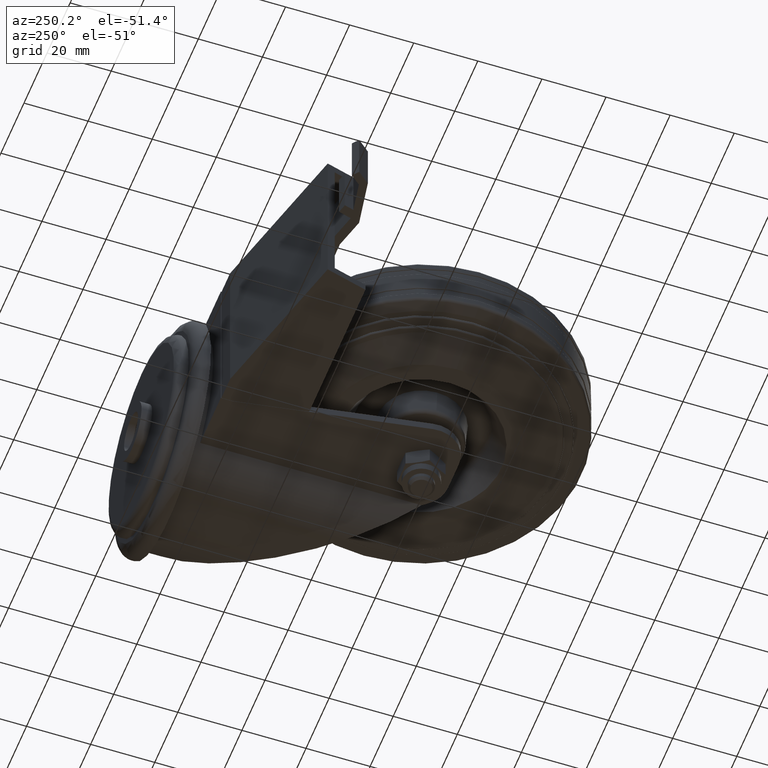
[diagram: clean part render]
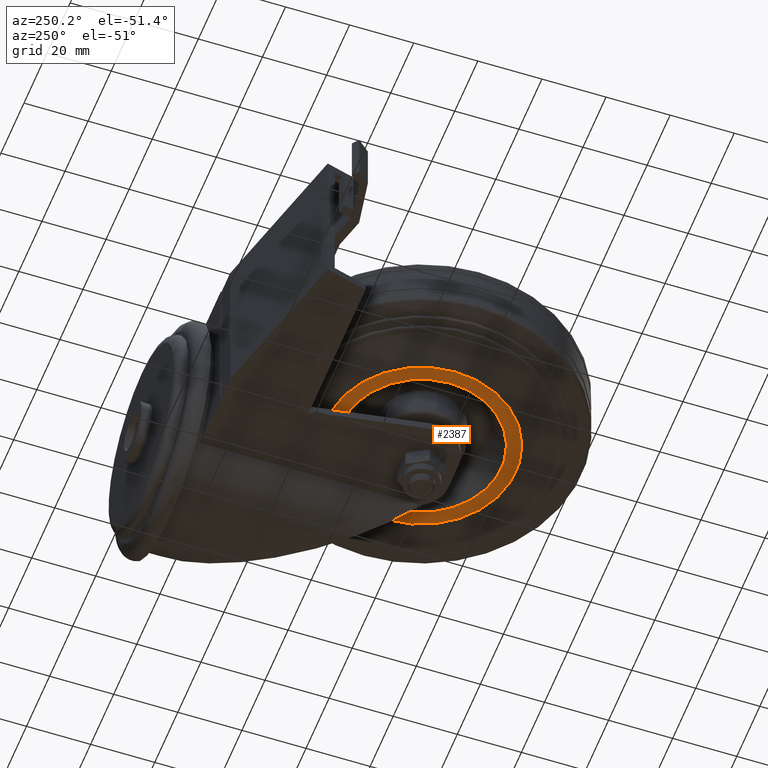
[diagram: same view with one face highlighted and labeled with its STEP entity id]
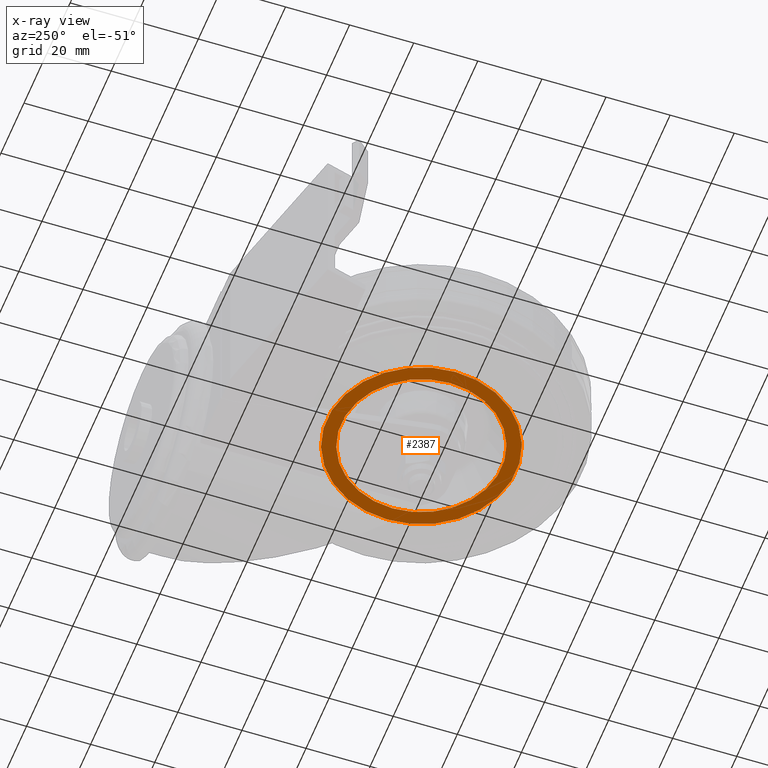
[diagram: x-ray of the same camera — body ghosted, the highlighted face saturated]
A machine part, auxiliary view. The second image highlights one B-rep face of the part: STEP entity #2387.
The next image is the same camera in x-ray: the body ghosted, the highlighted face saturated — about 0% of this face is hidden behind the body in this view.
In plain terms, the highlighted planar face has unit normal (-0, 0, -1).
Its self-contained STEP definition (entity closure, byte-faithful):
#202=FACE_BOUND('',#580,.T.);
#275=PLANE('',#2751);
#406=FACE_OUTER_BOUND('',#579,.T.);
#579=EDGE_LOOP('',(#2137));
#580=EDGE_LOOP('',(#2138));
#705=CIRCLE('',#2750,25.);
#706=CIRCLE('',#2752,29.4979721727557);
#1215=VERTEX_POINT('',#4240);
#1216=VERTEX_POINT('',#4244);
#1526=EDGE_CURVE('',#1215,#1215,#705,.T.);
#1527=EDGE_CURVE('',#1216,#1216,#706,.T.);
#2137=ORIENTED_EDGE('',*,*,#1527,.T.);
#2138=ORIENTED_EDGE('',*,*,#1526,.F.);
#2387=ADVANCED_FACE('',(#406,#202),#275,.T.);
#2750=AXIS2_PLACEMENT_3D('',#4242,#3410,#3411);
#2751=AXIS2_PLACEMENT_3D('',#4243,#3412,#3413);
#2752=AXIS2_PLACEMENT_3D('',#4245,#3414,#3415);
#3410=DIRECTION('center_axis',(-5.71914493359824E-17,0.,-1.));
#3411=DIRECTION('ref_axis',(-1.,0.,5.71914493359824E-17));
#3412=DIRECTION('center_axis',(-5.71914493359824E-17,0.,-1.));
#3413=DIRECTION('ref_axis',(-1.,0.,5.71914493359824E-17));
#3414=DIRECTION('center_axis',(-5.71914493359824E-17,0.,-1.));
#3415=DIRECTION('ref_axis',(-1.,0.,5.71914493359824E-17));
#4240=CARTESIAN_POINT('',(25.,-3.06161699786838E-15,-15.));
#4242=CARTESIAN_POINT('Origin',(-8.57871740039736E-16,0.,-15.));
#4243=CARTESIAN_POINT('Origin',(-25.,0.,-15.));
#4244=CARTESIAN_POINT('',(29.4979721727557,-3.6124597202703E-15,-15.));
#4245=CARTESIAN_POINT('Origin',(-8.57871740039736E-16,0.,-15.));